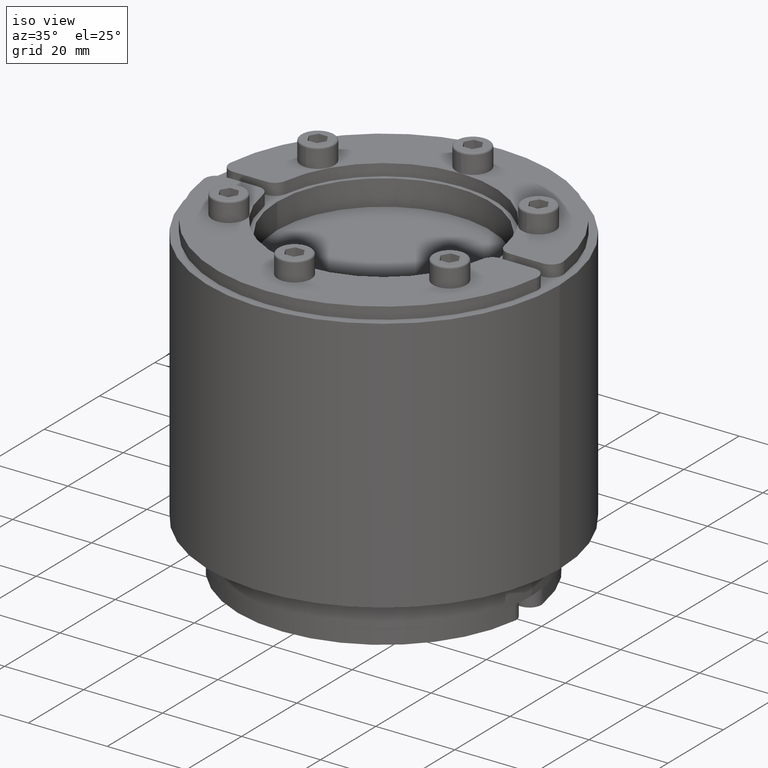
[diagram: clean part render]
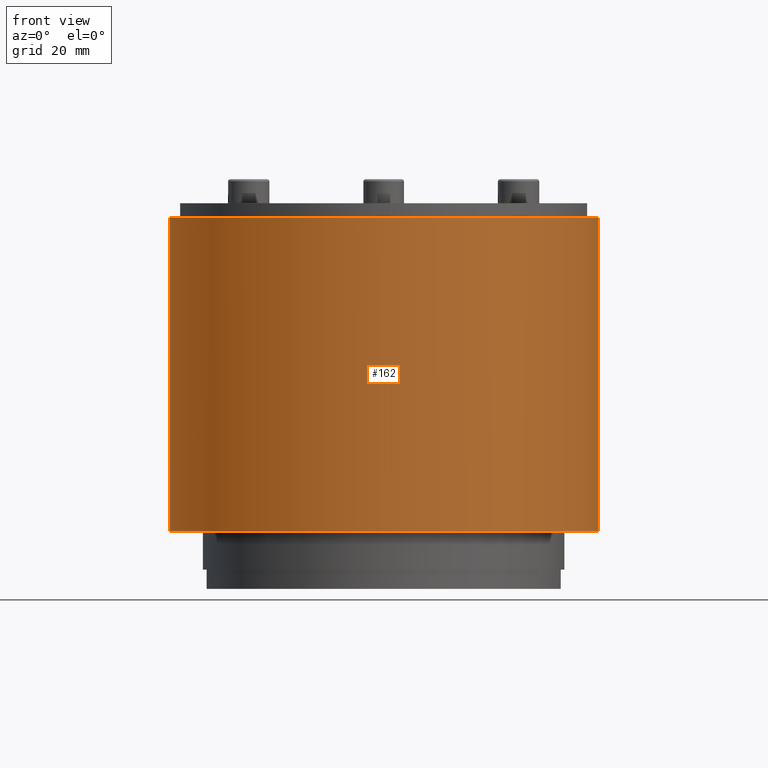
[diagram: tour spotlight — one face highlighted and labeled with its STEP entity id]
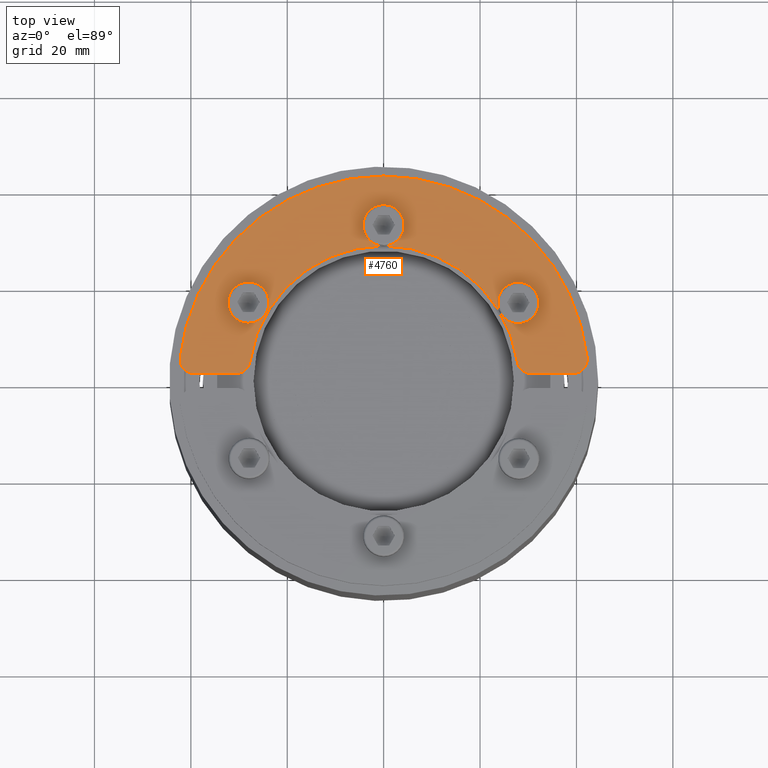
[diagram: tour spotlight — one face highlighted and labeled with its STEP entity id]
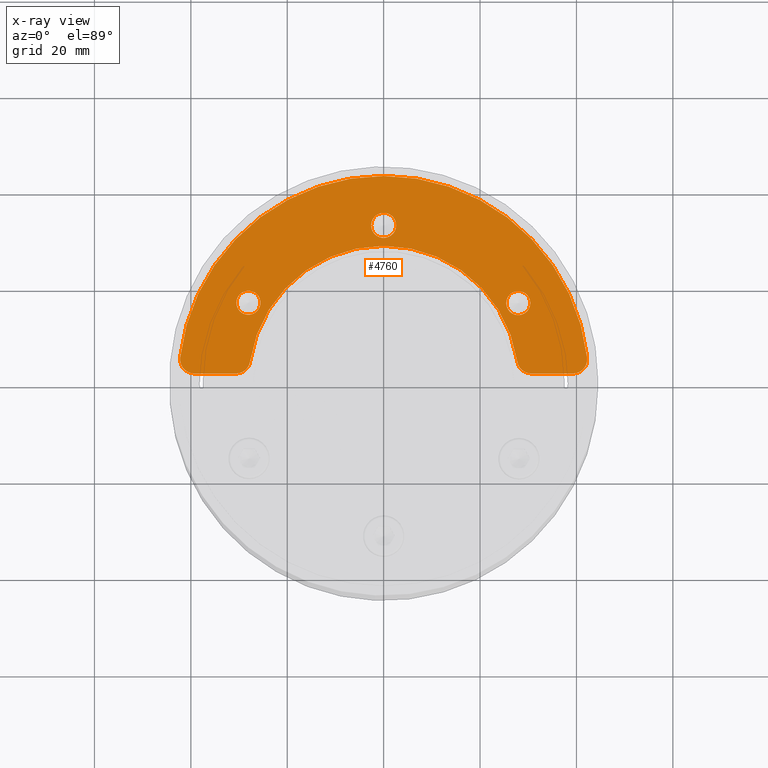
[diagram: x-ray of the same camera — body ghosted, this tour face saturated]
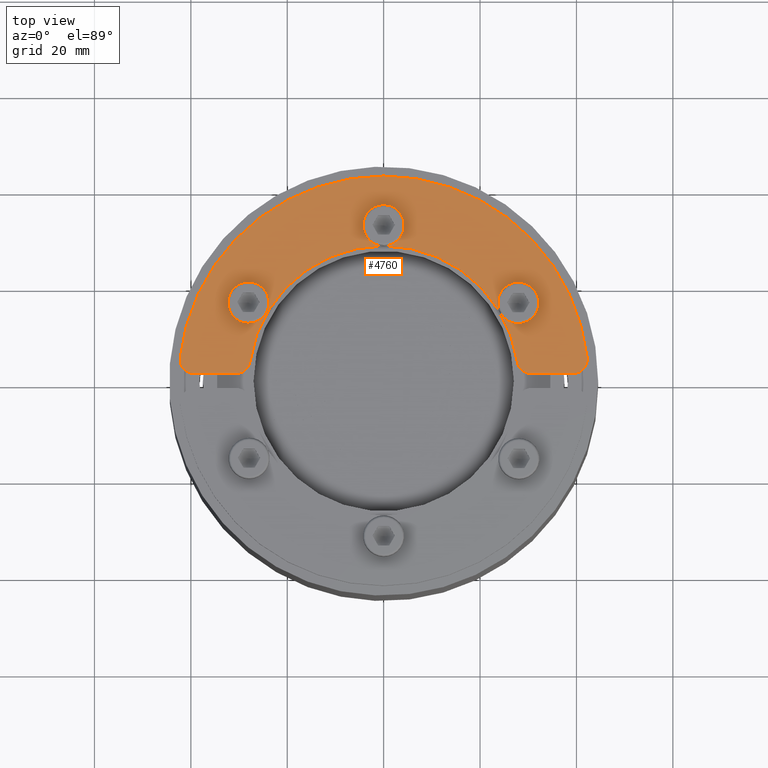
[diagram: tour spotlight — one face highlighted and labeled with its STEP entity id]
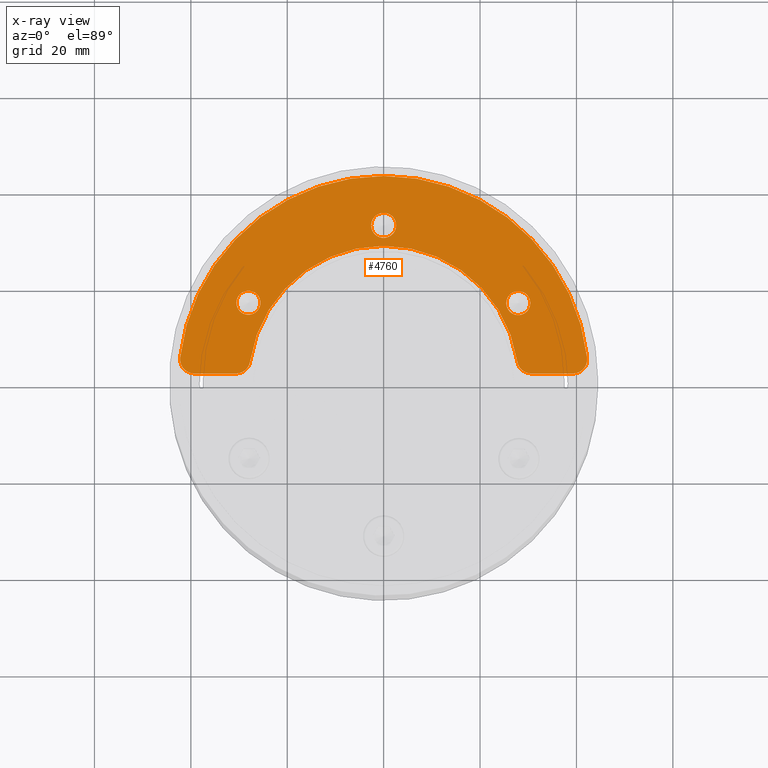
[diagram: x-ray of the same camera — body ghosted, this tour face saturated]
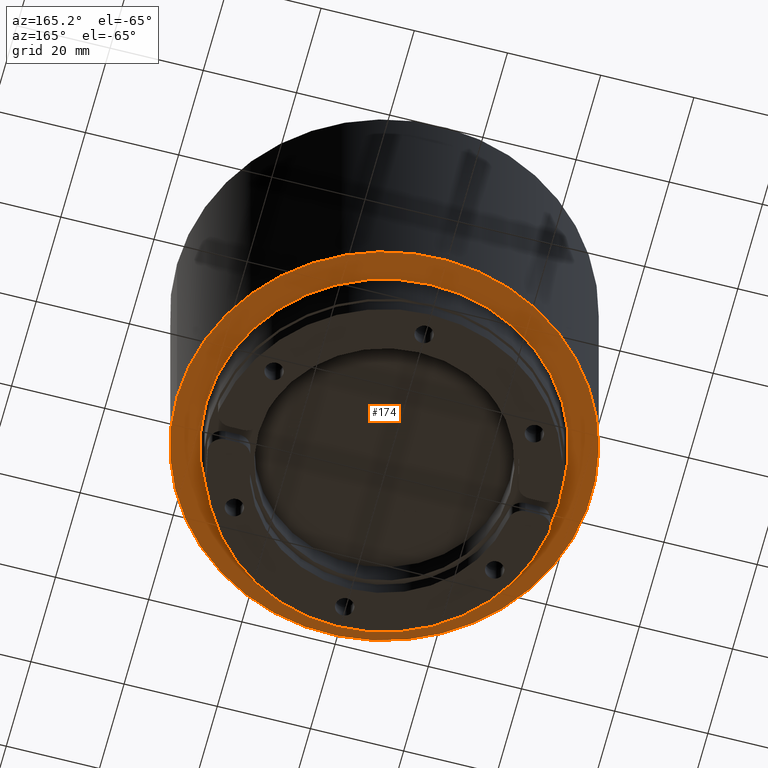
[diagram: tour spotlight — one face highlighted and labeled with its STEP entity id]
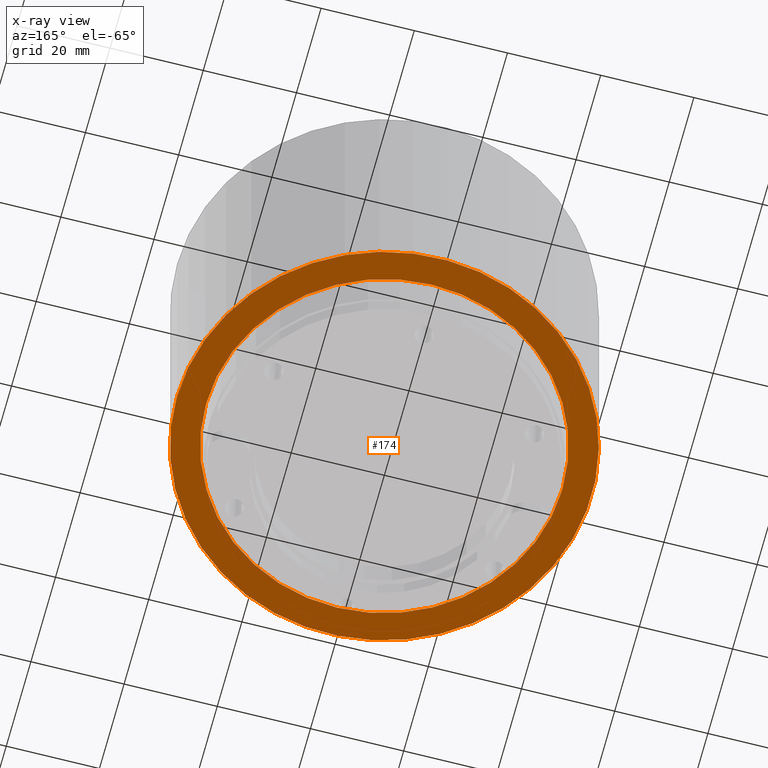
[diagram: x-ray of the same camera — body ghosted, this tour face saturated]
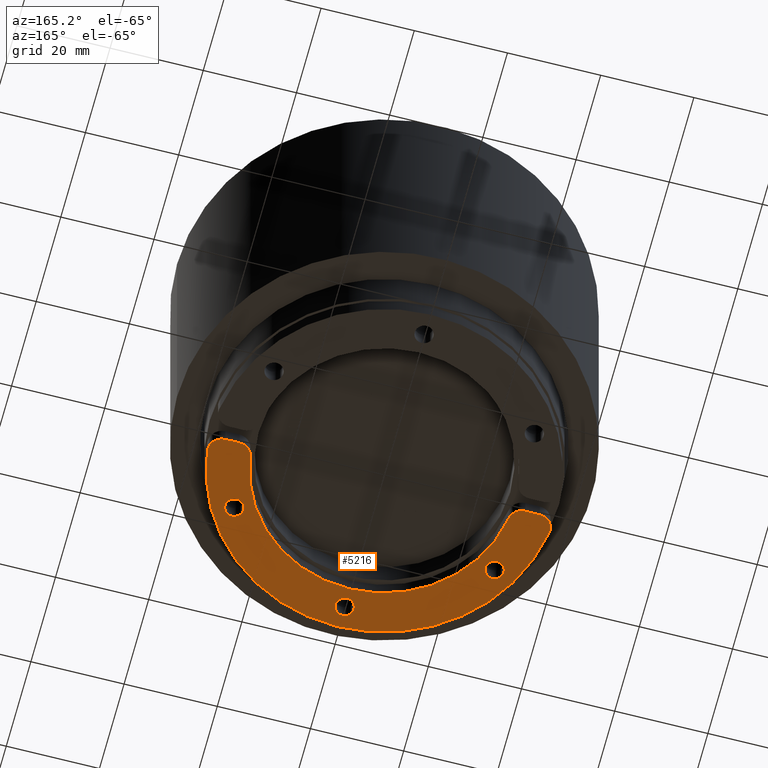
[diagram: tour spotlight — one face highlighted and labeled with its STEP entity id]
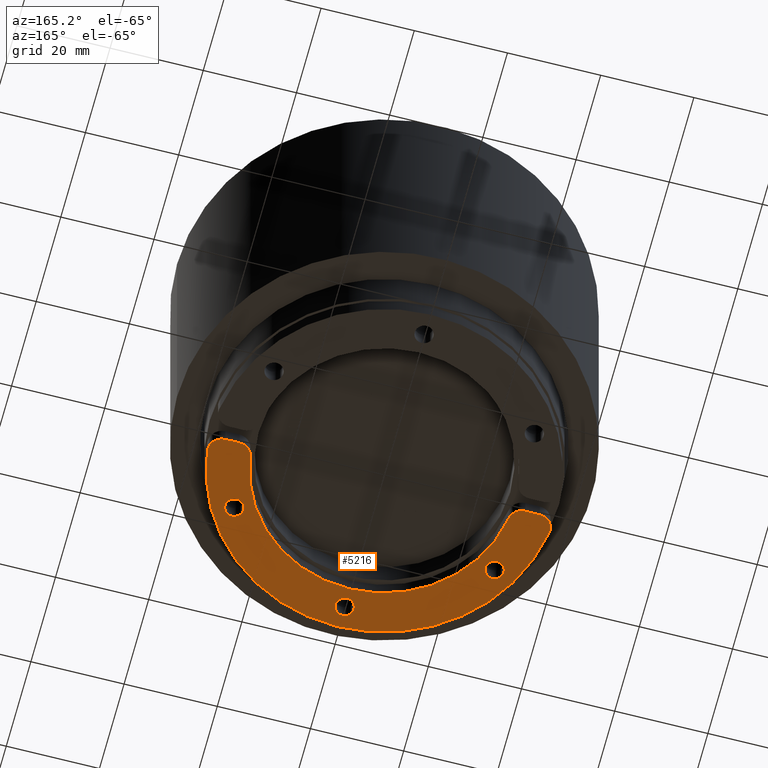
[diagram: tour spotlight — one face highlighted and labeled with its STEP entity id]
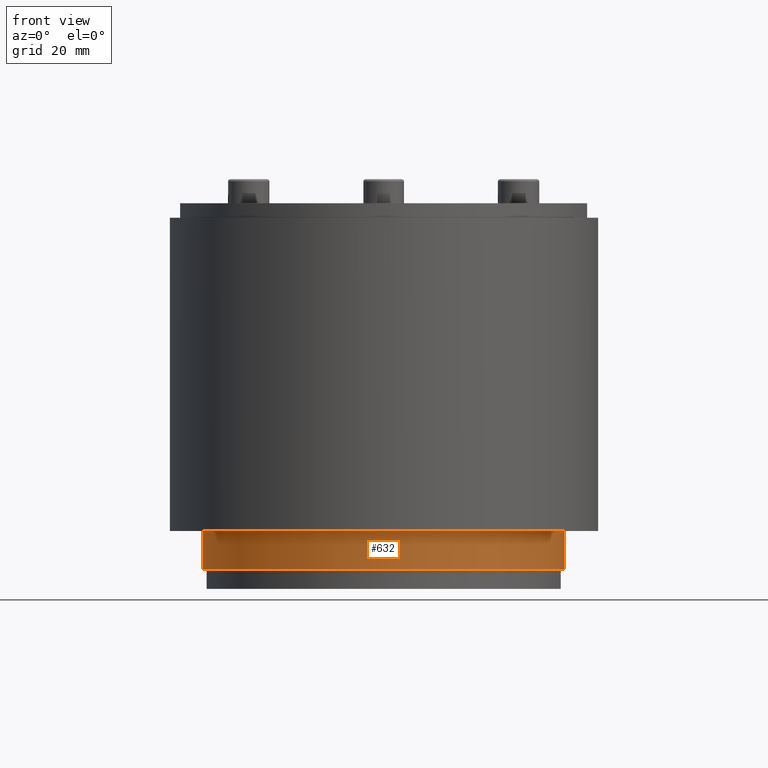
[diagram: tour spotlight — one face highlighted and labeled with its STEP entity id]
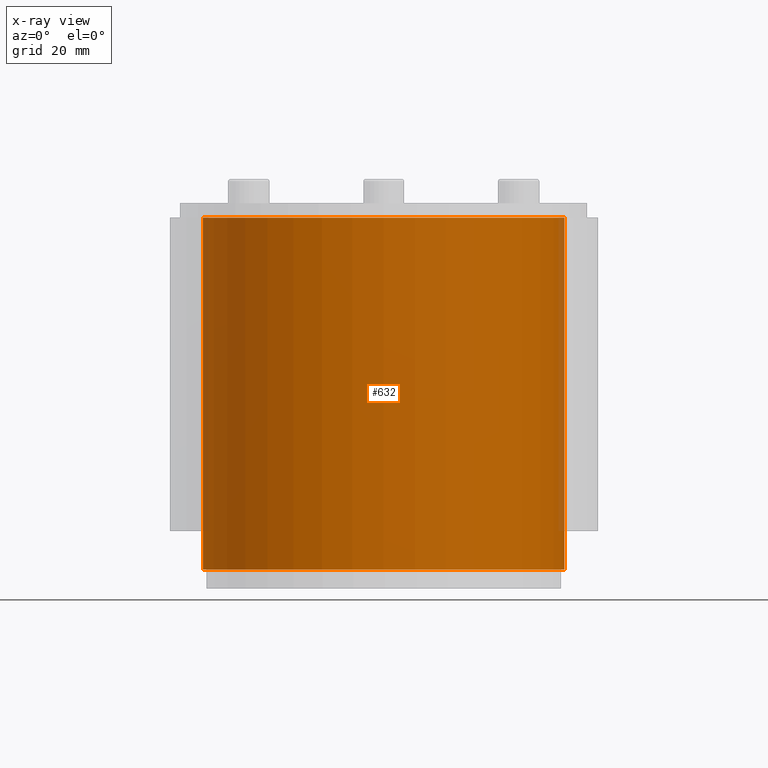
[diagram: x-ray of the same camera — body ghosted, this tour face saturated]
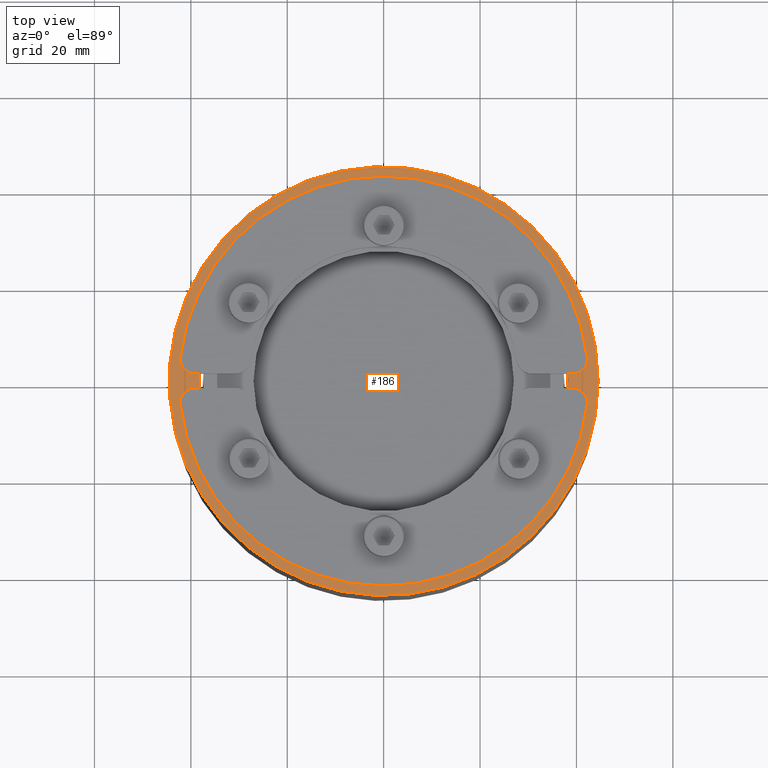
[diagram: tour spotlight — one face highlighted and labeled with its STEP entity id]
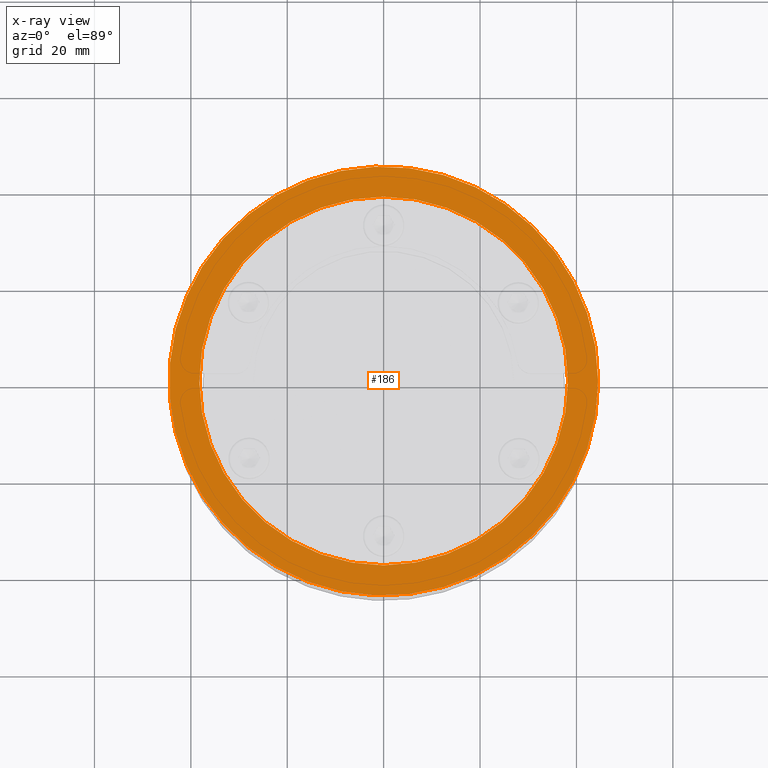
[diagram: x-ray of the same camera — body ghosted, this tour face saturated]
A machine part: a face-by-face anatomy tour. The part has 359 B-rep faces; the first image is the clean iso view, then the 8 largest visible faces are spotlighted one at a time (largest first), each with its STEP entity span.

Face 1 — front view, entity #162. In plain terms, the highlighted cylindrical surface (bore or boss wall) has radius 44.5 mm, axis along (0, 0, -1).
Definition (entity closure, byte-faithful):
#135=CARTESIAN_POINT('',(0.0,0.0,0.0));
#136=DIRECTION('',(0.0,0.0,-1.0));
#137=DIRECTION('',(-1.0,0.0,0.0));
#138=AXIS2_PLACEMENT_3D('',#135,#136,#137);
#139=CYLINDRICAL_SURFACE('',#138,44.5);
#140=CARTESIAN_POINT('',(44.5,5.449678E-015,-65.0));
#141=VERTEX_POINT('',#140);
#142=CARTESIAN_POINT('',(0.0,0.0,-65.0));
#143=DIRECTION('',(0.0,0.0,-1.0));
#144=DIRECTION('',(-1.0,0.0,0.0));
#145=AXIS2_PLACEMENT_3D('',#142,#143,#144);
#146=CIRCLE('',#145,44.5);
#147=EDGE_CURVE('',#141,#141,#146,.T.);
#148=ORIENTED_EDGE('',*,*,#147,.F.);
#149=EDGE_LOOP('',(#148));
#150=FACE_OUTER_BOUND('',#149,.T.);
#151=CARTESIAN_POINT('',(44.5,5.449678E-015,0.0));
#152=VERTEX_POINT('',#151);
#153=CARTESIAN_POINT('',(0.0,0.0,0.0));
#154=DIRECTION('',(0.0,0.0,-1.0));
#155=DIRECTION('',(-1.0,0.0,0.0));
#156=AXIS2_PLACEMENT_3D('',#153,#154,#155);
#157=CIRCLE('',#156,44.5);
#158=EDGE_CURVE('',#152,#152,#157,.T.);
#159=ORIENTED_EDGE('',*,*,#158,.T.);
#160=EDGE_LOOP('',(#159));
#161=FACE_BOUND('',#160,.T.);
#162=ADVANCED_FACE('',(#150,#161),#139,.T.);

Face 2 — top view, entity #4760. An x-ray twin of the same camera follows (body ghosted, this face saturated) — the face is partly hidden behind the body. In plain terms, the highlighted planar face has unit normal (0, 0, -1).
Definition (entity closure, byte-faithful):
#4383=CARTESIAN_POINT('',(47.216568144410417,11.865475256946041,0.0));
#4384=VERTEX_POINT('',#4383);
#4385=CARTESIAN_POINT('',(44.616568144410422,11.865475256946041,0.0));
#4386=DIRECTION('',(0.0,0.0,1.0));
#4387=DIRECTION('',(-1.0,0.0,0.0));
#4388=AXIS2_PLACEMENT_3D('',#4385,#4386,#4387);
#4389=CIRCLE('',#4388,2.6);
#4390=EDGE_CURVE('',#4384,#4384,#4389,.T.);
#4411=CARTESIAN_POINT('',(75.045887416458825,27.990475256945988,0.0));
#4412=VERTEX_POINT('',#4411);
#4413=CARTESIAN_POINT('',(72.545887416458825,27.990475256945988,0.0));
#4414=DIRECTION('',(0.0,0.0,1.0));
#4415=DIRECTION('',(-1.0,0.0,0.0));
#4416=AXIS2_PLACEMENT_3D('',#4413,#4414,#4415);
#4417=CIRCLE('',#4416,2.5);
#4418=EDGE_CURVE('',#4412,#4412,#4417,.T.);
#4439=CARTESIAN_POINT('',(19.057345061794834,27.915475256945999,0.0));
#4440=VERTEX_POINT('',#4439);
#4441=CARTESIAN_POINT('',(16.557345061794834,27.915475256945999,0.0));
#4442=DIRECTION('',(0.0,0.0,1.0));
#4443=DIRECTION('',(-1.0,0.0,0.0));
#4444=AXIS2_PLACEMENT_3D('',#4441,#4442,#4443);
#4445=CIRCLE('',#4444,2.5);
#4446=EDGE_CURVE('',#4440,#4440,#4445,.T.);
#4456=CARTESIAN_POINT('',(83.859401885107744,42.615475256945984,0.0));
#4457=VERTEX_POINT('',#4456);
#4458=CARTESIAN_POINT('',(86.83987027047705,39.27370310504638,0.0));
#4459=VERTEX_POINT('',#4458);
#4460=CARTESIAN_POINT('',(83.859401885107644,39.615475256946013,0.0));
#4461=DIRECTION('',(0.0,0.0,-1.0));
#4462=DIRECTION('',(-0.993489461789768,0.113924050633207,0.0));
#4463=AXIS2_PLACEMENT_3D('',#4460,#4461,#4462);
#4464=CIRCLE('',#4463,3.000000000000088);
#4465=EDGE_CURVE('',#4457,#4459,#4464,.T.);
#4498=CARTESIAN_POINT('',(2.393266018344093,39.273703105046394,0.0));
#4499=VERTEX_POINT('',#4498);
#4500=CARTESIAN_POINT('',(44.616568144410564,44.115475256946013,0.0));
#4501=DIRECTION('',(0.0,0.0,-1.0));
#4502=DIRECTION('',(0.993489461789799,0.113924050632932,0.0));
#4503=AXIS2_PLACEMENT_3D('',#4500,#4501,#4502);
#4504=CIRCLE('',#4503,42.5);
#4505=EDGE_CURVE('',#4459,#4499,#4504,.T.);
#4531=CARTESIAN_POINT('',(5.373734403713443,42.61547525694602,0.0));
#4532=VERTEX_POINT('',#4531);
#4533=CARTESIAN_POINT('',(5.373734403713443,39.615475256946013,0.0));
#4534=DIRECTION('',(0.0,0.0,-1.0));
#4535=DIRECTION('',(0.0,-1.0,0.0));
#4536=AXIS2_PLACEMENT_3D('',#4533,#4534,#4535);
#4537=CIRCLE('',#4536,3.000000000000088);
#4538=EDGE_CURVE('',#4499,#4532,#4537,.T.);
#4564=CARTESIAN_POINT('',(13.94491999828054,42.61547525694602,0.0));
#4565=VERTEX_POINT('',#4564);
#4566=CARTESIAN_POINT('',(5.373734403713443,42.61547525694602,0.0));
#4567=DIRECTION('',(1.0,0.0,0.0));
#4568=VECTOR('',#4567,8.571185594567098);
#4569=LINE('',#4566,#4568);
#4570=EDGE_CURVE('',#4532,#4565,#4569,.T.);
#4595=CARTESIAN_POINT('',(16.913144012421981,40.050959127914247,0.0));
#4596=VERTEX_POINT('',#4595);
#4597=CARTESIAN_POINT('',(13.94491999828054,39.615475256946013,0.0));
#4598=DIRECTION('',(0.0,0.0,-1.0));
#4599=DIRECTION('',(-0.989408004713847,-0.145161290322748,0.0));
#4600=AXIS2_PLACEMENT_3D('',#4597,#4598,#4599);
#4601=CIRCLE('',#4600,3.000000000000087);
#4602=EDGE_CURVE('',#4565,#4596,#4601,.T.);
#4628=CARTESIAN_POINT('',(72.319992276398921,40.050959127913714,0.0));
#4629=VERTEX_POINT('',#4628);
#4630=CARTESIAN_POINT('',(44.616568144410451,44.115475256945956,0.0));
#4631=DIRECTION('',(0.0,0.0,1.0));
#4632=DIRECTION('',(-0.989408004713874,-0.145161290322561,0.0));
#4633=AXIS2_PLACEMENT_3D('',#4630,#4631,#4632);
#4634=CIRCLE('',#4633,28.0);
#4635=EDGE_CURVE('',#4596,#4629,#4634,.T.);
#4661=CARTESIAN_POINT('',(75.288216290540632,42.615475256945984,0.0));
#4662=VERTEX_POINT('',#4661);
#4663=CARTESIAN_POINT('',(75.288216290540632,39.615475256946013,0.0));
#4664=DIRECTION('',(0.0,0.0,-1.0));
#4665=DIRECTION('',(0.0,-1.0,0.0));
#4666=AXIS2_PLACEMENT_3D('',#4663,#4664,#4665);
#4667=CIRCLE('',#4666,3.000000000000088);
#4668=EDGE_CURVE('',#4629,#4662,#4667,.T.);
#4694=CARTESIAN_POINT('',(75.288216290540632,42.615475256945984,0.0));
#4695=DIRECTION('',(1.0,0.0,0.0));
#4696=VECTOR('',#4695,8.571185594567112);
#4697=LINE('',#4694,#4696);
#4698=EDGE_CURVE('',#4662,#4457,#4697,.T.);
#4736=CARTESIAN_POINT('',(44.616568144410508,22.809222355550425,0.0));
#4737=DIRECTION('',(0.0,0.0,1.0));
#4738=DIRECTION('',(1.0,0.0,0.0));
#4739=AXIS2_PLACEMENT_3D('',#4736,#4737,#4738);
#4740=PLANE('',#4739);
#4741=ORIENTED_EDGE('',*,*,#4698,.T.);
#4742=ORIENTED_EDGE('',*,*,#4465,.T.);
#4743=ORIENTED_EDGE('',*,*,#4505,.T.);
#4744=ORIENTED_EDGE('',*,*,#4538,.T.);
#4745=ORIENTED_EDGE('',*,*,#4570,.T.);
#4746=ORIENTED_EDGE('',*,*,#4602,.T.);
#4747=ORIENTED_EDGE('',*,*,#4635,.T.);
#4748=ORIENTED_EDGE('',*,*,#4668,.T.);
#4749=EDGE_LOOP('',(#4741,#4742,#4743,#4744,#4745,#4746,#4747,#4748));
#4750=FACE_OUTER_BOUND('',#4749,.T.);
#4751=ORIENTED_EDGE('',*,*,#4390,.T.);
#4752=EDGE_LOOP('',(#4751));
#4753=FACE_BOUND('',#4752,.T.);
#4754=ORIENTED_EDGE('',*,*,#4418,.T.);
#4755=EDGE_LOOP('',(#4754));
#4756=FACE_BOUND('',#4755,.T.);
#4757=ORIENTED_EDGE('',*,*,#4446,.T.);
#4758=EDGE_LOOP('',(#4757));
#4759=FACE_BOUND('',#4758,.T.);
#4760=ADVANCED_FACE('',(#4750,#4753,#4756,#4759),#4740,.F.);

Face 3 — top view, entity #4760. An x-ray twin of the same camera follows (body ghosted, this face saturated) — the face is partly hidden behind the body. In plain terms, the highlighted planar face has unit normal (-0, 0, -1).
Definition (entity closure, byte-faithful):
#4383=CARTESIAN_POINT('',(47.216568144410417,11.865475256946041,0.0));
#4384=VERTEX_POINT('',#4383);
#4385=CARTESIAN_POINT('',(44.616568144410422,11.865475256946041,0.0));
#4386=DIRECTION('',(0.0,0.0,1.0));
#4387=DIRECTION('',(-1.0,0.0,0.0));
#4388=AXIS2_PLACEMENT_3D('',#4385,#4386,#4387);
#4389=CIRCLE('',#4388,2.6);
#4390=EDGE_CURVE('',#4384,#4384,#4389,.T.);
#4411=CARTESIAN_POINT('',(75.045887416458825,27.990475256945988,0.0));
#4412=VERTEX_POINT('',#4411);
#4413=CARTESIAN_POINT('',(72.545887416458825,27.990475256945988,0.0));
#4414=DIRECTION('',(0.0,0.0,1.0));
#4415=DIRECTION('',(-1.0,0.0,0.0));
#4416=AXIS2_PLACEMENT_3D('',#4413,#4414,#4415);
#4417=CIRCLE('',#4416,2.5);
#4418=EDGE_CURVE('',#4412,#4412,#4417,.T.);
#4439=CARTESIAN_POINT('',(19.057345061794834,27.915475256945999,0.0));
#4440=VERTEX_POINT('',#4439);
#4441=CARTESIAN_POINT('',(16.557345061794834,27.915475256945999,0.0));
#4442=DIRECTION('',(0.0,0.0,1.0));
#4443=DIRECTION('',(-1.0,0.0,0.0));
#4444=AXIS2_PLACEMENT_3D('',#4441,#4442,#4443);
#4445=CIRCLE('',#4444,2.5);
#4446=EDGE_CURVE('',#4440,#4440,#4445,.T.);
#4456=CARTESIAN_POINT('',(83.859401885107744,42.615475256945984,0.0));
#4457=VERTEX_POINT('',#4456);
#4458=CARTESIAN_POINT('',(86.83987027047705,39.27370310504638,0.0));
#4459=VERTEX_POINT('',#4458);
#4460=CARTESIAN_POINT('',(83.859401885107644,39.615475256946013,0.0));
#4461=DIRECTION('',(0.0,0.0,-1.0));
#4462=DIRECTION('',(-0.993489461789768,0.113924050633207,0.0));
#4463=AXIS2_PLACEMENT_3D('',#4460,#4461,#4462);
#4464=CIRCLE('',#4463,3.000000000000088);
#4465=EDGE_CURVE('',#4457,#4459,#4464,.T.);
#4498=CARTESIAN_POINT('',(2.393266018344093,39.273703105046394,0.0));
#4499=VERTEX_POINT('',#4498);
#4500=CARTESIAN_POINT('',(44.616568144410564,44.115475256946013,0.0));
#4501=DIRECTION('',(0.0,0.0,-1.0));
#4502=DIRECTION('',(0.993489461789799,0.113924050632932,0.0));
#4503=AXIS2_PLACEMENT_3D('',#4500,#4501,#4502);
#4504=CIRCLE('',#4503,42.5);
#4505=EDGE_CURVE('',#4459,#4499,#4504,.T.);
#4531=CARTESIAN_POINT('',(5.373734403713443,42.61547525694602,0.0));
#4532=VERTEX_POINT('',#4531);
#4533=CARTESIAN_POINT('',(5.373734403713443,39.615475256946013,0.0));
#4534=DIRECTION('',(0.0,0.0,-1.0));
#4535=DIRECTION('',(0.0,-1.0,0.0));
#4536=AXIS2_PLACEMENT_3D('',#4533,#4534,#4535);
#4537=CIRCLE('',#4536,3.000000000000088);
#4538=EDGE_CURVE('',#4499,#4532,#4537,.T.);
#4564=CARTESIAN_POINT('',(13.94491999828054,42.61547525694602,0.0));
#4565=VERTEX_POINT('',#4564);
#4566=CARTESIAN_POINT('',(5.373734403713443,42.61547525694602,0.0));
#4567=DIRECTION('',(1.0,0.0,0.0));
#4568=VECTOR('',#4567,8.571185594567098);
#4569=LINE('',#4566,#4568);
#4570=EDGE_CURVE('',#4532,#4565,#4569,.T.);
#4595=CARTESIAN_POINT('',(16.913144012421981,40.050959127914247,0.0));
#4596=VERTEX_POINT('',#4595);
#4597=CARTESIAN_POINT('',(13.94491999828054,39.615475256946013,0.0));
#4598=DIRECTION('',(0.0,0.0,-1.0));
#4599=DIRECTION('',(-0.989408004713847,-0.145161290322748,0.0));
#4600=AXIS2_PLACEMENT_3D('',#4597,#4598,#4599);
#4601=CIRCLE('',#4600,3.000000000000087);
#4602=EDGE_CURVE('',#4565,#4596,#4601,.T.);
#4628=CARTESIAN_POINT('',(72.319992276398921,40.050959127913714,0.0));
#4629=VERTEX_POINT('',#4628);
#4630=CARTESIAN_POINT('',(44.616568144410451,44.115475256945956,0.0));
#4631=DIRECTION('',(0.0,0.0,1.0));
#4632=DIRECTION('',(-0.989408004713874,-0.145161290322561,0.0));
#4633=AXIS2_PLACEMENT_3D('',#4630,#4631,#4632);
#4634=CIRCLE('',#4633,28.0);
#4635=EDGE_CURVE('',#4596,#4629,#4634,.T.);
#4661=CARTESIAN_POINT('',(75.288216290540632,42.615475256945984,0.0));
#4662=VERTEX_POINT('',#4661);
#4663=CARTESIAN_POINT('',(75.288216290540632,39.615475256946013,0.0));
#4664=DIRECTION('',(0.0,0.0,-1.0));
#4665=DIRECTION('',(0.0,-1.0,0.0));
#4666=AXIS2_PLACEMENT_3D('',#4663,#4664,#4665);
#4667=CIRCLE('',#4666,3.000000000000088);
#4668=EDGE_CURVE('',#4629,#4662,#4667,.T.);
#4694=CARTESIAN_POINT('',(75.288216290540632,42.615475256945984,0.0));
#4695=DIRECTION('',(1.0,0.0,0.0));
#4696=VECTOR('',#4695,8.571185594567112);
#4697=LINE('',#4694,#4696);
#4698=EDGE_CURVE('',#4662,#4457,#4697,.T.);
#4736=CARTESIAN_POINT('',(44.616568144410508,22.809222355550425,0.0));
#4737=DIRECTION('',(0.0,0.0,1.0));
#4738=DIRECTION('',(1.0,0.0,0.0));
#4739=AXIS2_PLACEMENT_3D('',#4736,#4737,#4738);
#4740=PLANE('',#4739);
#4741=ORIENTED_EDGE('',*,*,#4698,.T.);
#4742=ORIENTED_EDGE('',*,*,#4465,.T.);
#4743=ORIENTED_EDGE('',*,*,#4505,.T.);
#4744=ORIENTED_EDGE('',*,*,#4538,.T.);
#4745=ORIENTED_EDGE('',*,*,#4570,.T.);
#4746=ORIENTED_EDGE('',*,*,#4602,.T.);
#4747=ORIENTED_EDGE('',*,*,#4635,.T.);
#4748=ORIENTED_EDGE('',*,*,#4668,.T.);
#4749=EDGE_LOOP('',(#4741,#4742,#4743,#4744,#4745,#4746,#4747,#4748));
#4750=FACE_OUTER_BOUND('',#4749,.T.);
#4751=ORIENTED_EDGE('',*,*,#4390,.T.);
#4752=EDGE_LOOP('',(#4751));
#4753=FACE_BOUND('',#4752,.T.);
#4754=ORIENTED_EDGE('',*,*,#4418,.T.);
#4755=EDGE_LOOP('',(#4754));
#4756=FACE_BOUND('',#4755,.T.);
#4757=ORIENTED_EDGE('',*,*,#4446,.T.);
#4758=EDGE_LOOP('',(#4757));
#4759=FACE_BOUND('',#4758,.T.);
#4760=ADVANCED_FACE('',(#4750,#4753,#4756,#4759),#4740,.F.);

Face 4 — auxiliary view, entity #174. An x-ray twin of the same camera follows (body ghosted, this face saturated) — the face is partly hidden behind the body. In plain terms, the highlighted planar face has unit normal (0, 0, 1).
Definition (entity closure, byte-faithful):
#112=CARTESIAN_POINT('',(-38.25,-4.684274E-015,-65.0));
#113=VERTEX_POINT('',#112);
#114=CARTESIAN_POINT('',(0.0,0.0,-65.0));
#115=DIRECTION('',(0.0,0.0,1.0));
#116=DIRECTION('',(1.0,0.0,0.0));
#117=AXIS2_PLACEMENT_3D('',#114,#115,#116);
#118=CIRCLE('',#117,38.25);
#119=EDGE_CURVE('',#113,#113,#118,.T.);
#140=CARTESIAN_POINT('',(44.5,5.449678E-015,-65.0));
#141=VERTEX_POINT('',#140);
#142=CARTESIAN_POINT('',(0.0,0.0,-65.0));
#143=DIRECTION('',(0.0,0.0,-1.0));
#144=DIRECTION('',(-1.0,0.0,0.0));
#145=AXIS2_PLACEMENT_3D('',#142,#143,#144);
#146=CIRCLE('',#145,44.5);
#147=EDGE_CURVE('',#141,#141,#146,.T.);
#163=CARTESIAN_POINT('',(-1.784744E-015,6.653022E-016,-65.0));
#164=DIRECTION('',(0.0,0.0,1.0));
#165=DIRECTION('',(1.0,0.0,0.0));
#166=AXIS2_PLACEMENT_3D('',#163,#164,#165);
#167=PLANE('',#166);
#168=ORIENTED_EDGE('',*,*,#147,.T.);
#169=EDGE_LOOP('',(#168));
#170=FACE_OUTER_BOUND('',#169,.T.);
#171=ORIENTED_EDGE('',*,*,#119,.T.);
#172=EDGE_LOOP('',(#171));
#173=FACE_BOUND('',#172,.T.);
#174=ADVANCED_FACE('',(#170,#173),#167,.F.);

Face 5 — auxiliary view, entity #5216. In plain terms, the highlighted planar face has unit normal (-0, 0, -1).
Definition (entity closure, byte-faithful):
#4853=CARTESIAN_POINT('',(14.344494948543359,22.796060328683684,4.0));
#4854=VERTEX_POINT('',#4853);
#4855=CARTESIAN_POINT('',(12.344494948543359,22.796060328683684,4.0));
#4856=DIRECTION('',(0.0,0.0,-1.0));
#4857=DIRECTION('',(-1.0,0.0,0.0));
#4858=AXIS2_PLACEMENT_3D('',#4855,#4856,#4857);
#4859=CIRCLE('',#4858,2.0);
#4860=EDGE_CURVE('',#4854,#4854,#4859,.T.);
#4881=CARTESIAN_POINT('',(42.273814220591547,6.671060328683596,4.0));
#4882=VERTEX_POINT('',#4881);
#4883=CARTESIAN_POINT('',(40.273814220591547,6.671060328683596,4.0));
#4884=DIRECTION('',(0.0,0.0,-1.0));
#4885=DIRECTION('',(-1.0,0.0,0.0));
#4886=AXIS2_PLACEMENT_3D('',#4883,#4884,#4885);
#4887=CIRCLE('',#4886,2.0);
#4888=EDGE_CURVE('',#4882,#4882,#4887,.T.);
#4909=CARTESIAN_POINT('',(70.203133492639751,22.796060328683552,4.0));
#4910=VERTEX_POINT('',#4909);
#4911=CARTESIAN_POINT('',(68.203133492639751,22.796060328683552,4.0));
#4912=DIRECTION('',(0.0,0.0,-1.0));
#4913=DIRECTION('',(-1.0,0.0,0.0));
#4914=AXIS2_PLACEMENT_3D('',#4911,#4912,#4913);
#4915=CIRCLE('',#4914,2.0);
#4916=EDGE_CURVE('',#4910,#4910,#4915,.T.);
#4948=CARTESIAN_POINT('',(9.60216607446165,37.42106032868368,4.0));
#4949=VERTEX_POINT('',#4948);
#4956=CARTESIAN_POINT('',(12.570390088603133,34.856544199651957,4.0));
#4957=VERTEX_POINT('',#4956);
#4958=CARTESIAN_POINT('',(9.60216607446165,34.42106032868378,4.0));
#4959=DIRECTION('',(0.0,0.0,1.0));
#4960=DIRECTION('',(-0.989408004713849,-0.145161290322729,0.0));
#4961=AXIS2_PLACEMENT_3D('',#4958,#4959,#4960);
#4962=CIRCLE('',#4961,3.0);
#4963=EDGE_CURVE('',#4957,#4949,#4962,.T.);
#4989=CARTESIAN_POINT('',(67.977238352580088,34.856544199651943,4.0));
#4990=VERTEX_POINT('',#4989);
#4991=CARTESIAN_POINT('',(40.273814220591603,38.921060328683666,4.0));
#4992=DIRECTION('',(0.0,0.0,-1.0));
#4993=DIRECTION('',(-0.989408004713874,-0.145161290322561,0.0));
#4994=AXIS2_PLACEMENT_3D('',#4991,#4992,#4993);
#4995=CIRCLE('',#4994,28.0);
#4996=EDGE_CURVE('',#4990,#4957,#4995,.T.);
#5022=CARTESIAN_POINT('',(70.9454623667216,37.421060328683666,4.0));
#5023=VERTEX_POINT('',#5022);
#5024=CARTESIAN_POINT('',(70.945462366721713,34.421060328683666,4.0));
#5025=DIRECTION('',(0.0,0.0,1.0));
#5026=DIRECTION('',(0.0,-1.0,0.0));
#5027=AXIS2_PLACEMENT_3D('',#5024,#5025,#5026);
#5028=CIRCLE('',#5027,3.0);
#5029=EDGE_CURVE('',#5023,#4990,#5028,.T.);
#5054=CARTESIAN_POINT('',(74.02629944596255,37.421060328683666,4.0));
#5055=VERTEX_POINT('',#5054);
#5056=CARTESIAN_POINT('',(74.02629944596255,37.421060328683666,4.0));
#5057=DIRECTION('',(-1.0,0.0,0.0));
#5058=VECTOR('',#5057,3.080837079240951);
#5059=LINE('',#5056,#5058);
#5060=EDGE_CURVE('',#5055,#5023,#5059,.T.);
#5086=CARTESIAN_POINT('',(76.868884107341614,33.462043935240352,4.0));
#5087=VERTEX_POINT('',#5086);
#5088=CARTESIAN_POINT('',(74.02629944596255,34.421060328683666,4.0));
#5089=DIRECTION('',(0.0,0.0,1.0));
#5090=DIRECTION('',(-0.947528220459659,0.319672131147761,0.0));
#5091=AXIS2_PLACEMENT_3D('',#5088,#5089,#5090);
#5092=CIRCLE('',#5091,3.0);
#5093=EDGE_CURVE('',#5087,#5055,#5092,.T.);
#5119=CARTESIAN_POINT('',(3.599316066166989,34.024001505154288,4.0));
#5120=VERTEX_POINT('',#5119);
#5121=CARTESIAN_POINT('',(40.273814220591603,38.921060328683666,4.0));
#5122=DIRECTION('',(0.0,0.0,1.0));
#5123=DIRECTION('',(0.991202652822286,0.13235294117647,0.0));
#5124=AXIS2_PLACEMENT_3D('',#5121,#5122,#5123);
#5125=CIRCLE('',#5124,37.0);
#5126=EDGE_CURVE('',#5120,#5087,#5125,.T.);
#5152=CARTESIAN_POINT('',(6.572924024633863,37.42106032868368,4.0));
#5153=VERTEX_POINT('',#5152);
#5154=CARTESIAN_POINT('',(6.572924024633849,34.42106032868368,4.0));
#5155=DIRECTION('',(0.0,0.0,1.0));
#5156=DIRECTION('',(0.0,-1.0,0.0));
#5157=AXIS2_PLACEMENT_3D('',#5154,#5155,#5156);
#5158=CIRCLE('',#5157,3.0);
#5159=EDGE_CURVE('',#5153,#5120,#5158,.T.);
#5182=CARTESIAN_POINT('',(9.60216607446165,37.42106032868368,4.0));
#5183=DIRECTION('',(-1.0,0.0,0.0));
#5184=VECTOR('',#5183,3.029242049827786);
#5185=LINE('',#5182,#5184);
#5186=EDGE_CURVE('',#4949,#5153,#5185,.T.);
#5192=CARTESIAN_POINT('',(40.287811891970911,18.623734456226352,4.0));
#5193=DIRECTION('',(0.0,0.0,1.0));
#5194=DIRECTION('',(1.0,0.0,0.0));
#5195=AXIS2_PLACEMENT_3D('',#5192,#5193,#5194);
#5196=PLANE('',#5195);
#5197=ORIENTED_EDGE('',*,*,#5186,.T.);
#5198=ORIENTED_EDGE('',*,*,#5159,.T.);
#5199=ORIENTED_EDGE('',*,*,#5126,.T.);
#5200=ORIENTED_EDGE('',*,*,#5093,.T.);
#5201=ORIENTED_EDGE('',*,*,#5060,.T.);
#5202=ORIENTED_EDGE('',*,*,#5029,.T.);
#5203=ORIENTED_EDGE('',*,*,#4996,.T.);
#5204=ORIENTED_EDGE('',*,*,#4963,.T.);
#5205=EDGE_LOOP('',(#5197,#5198,#5199,#5200,#5201,#5202,#5203,#5204));
#5206=FACE_OUTER_BOUND('',#5205,.T.);
#5207=ORIENTED_EDGE('',*,*,#4860,.T.);
#5208=EDGE_LOOP('',(#5207));
#5209=FACE_BOUND('',#5208,.T.);
#5210=ORIENTED_EDGE('',*,*,#4888,.T.);
#5211=EDGE_LOOP('',(#5210));
#5212=FACE_BOUND('',#5211,.T.);
#5213=ORIENTED_EDGE('',*,*,#4916,.T.);
#5214=EDGE_LOOP('',(#5213));
#5215=FACE_BOUND('',#5214,.T.);
#5216=ADVANCED_FACE('',(#5206,#5209,#5212,#5215),#5196,.T.);

Face 6 — auxiliary view, entity #5216. In plain terms, the highlighted planar face has unit normal (0, 0, -1).
Definition (entity closure, byte-faithful):
#4853=CARTESIAN_POINT('',(14.344494948543359,22.796060328683684,4.0));
#4854=VERTEX_POINT('',#4853);
#4855=CARTESIAN_POINT('',(12.344494948543359,22.796060328683684,4.0));
#4856=DIRECTION('',(0.0,0.0,-1.0));
#4857=DIRECTION('',(-1.0,0.0,0.0));
#4858=AXIS2_PLACEMENT_3D('',#4855,#4856,#4857);
#4859=CIRCLE('',#4858,2.0);
#4860=EDGE_CURVE('',#4854,#4854,#4859,.T.);
#4881=CARTESIAN_POINT('',(42.273814220591547,6.671060328683596,4.0));
#4882=VERTEX_POINT('',#4881);
#4883=CARTESIAN_POINT('',(40.273814220591547,6.671060328683596,4.0));
#4884=DIRECTION('',(0.0,0.0,-1.0));
#4885=DIRECTION('',(-1.0,0.0,0.0));
#4886=AXIS2_PLACEMENT_3D('',#4883,#4884,#4885);
#4887=CIRCLE('',#4886,2.0);
#4888=EDGE_CURVE('',#4882,#4882,#4887,.T.);
#4909=CARTESIAN_POINT('',(70.203133492639751,22.796060328683552,4.0));
#4910=VERTEX_POINT('',#4909);
#4911=CARTESIAN_POINT('',(68.203133492639751,22.796060328683552,4.0));
#4912=DIRECTION('',(0.0,0.0,-1.0));
#4913=DIRECTION('',(-1.0,0.0,0.0));
#4914=AXIS2_PLACEMENT_3D('',#4911,#4912,#4913);
#4915=CIRCLE('',#4914,2.0);
#4916=EDGE_CURVE('',#4910,#4910,#4915,.T.);
#4948=CARTESIAN_POINT('',(9.60216607446165,37.42106032868368,4.0));
#4949=VERTEX_POINT('',#4948);
#4956=CARTESIAN_POINT('',(12.570390088603133,34.856544199651957,4.0));
#4957=VERTEX_POINT('',#4956);
#4958=CARTESIAN_POINT('',(9.60216607446165,34.42106032868378,4.0));
#4959=DIRECTION('',(0.0,0.0,1.0));
#4960=DIRECTION('',(-0.989408004713849,-0.145161290322729,0.0));
#4961=AXIS2_PLACEMENT_3D('',#4958,#4959,#4960);
#4962=CIRCLE('',#4961,3.0);
#4963=EDGE_CURVE('',#4957,#4949,#4962,.T.);
#4989=CARTESIAN_POINT('',(67.977238352580088,34.856544199651943,4.0));
#4990=VERTEX_POINT('',#4989);
#4991=CARTESIAN_POINT('',(40.273814220591603,38.921060328683666,4.0));
#4992=DIRECTION('',(0.0,0.0,-1.0));
#4993=DIRECTION('',(-0.989408004713874,-0.145161290322561,0.0));
#4994=AXIS2_PLACEMENT_3D('',#4991,#4992,#4993);
#4995=CIRCLE('',#4994,28.0);
#4996=EDGE_CURVE('',#4990,#4957,#4995,.T.);
#5022=CARTESIAN_POINT('',(70.9454623667216,37.421060328683666,4.0));
#5023=VERTEX_POINT('',#5022);
#5024=CARTESIAN_POINT('',(70.945462366721713,34.421060328683666,4.0));
#5025=DIRECTION('',(0.0,0.0,1.0));
#5026=DIRECTION('',(0.0,-1.0,0.0));
#5027=AXIS2_PLACEMENT_3D('',#5024,#5025,#5026);
#5028=CIRCLE('',#5027,3.0);
#5029=EDGE_CURVE('',#5023,#4990,#5028,.T.);
#5054=CARTESIAN_POINT('',(74.02629944596255,37.421060328683666,4.0));
#5055=VERTEX_POINT('',#5054);
#5056=CARTESIAN_POINT('',(74.02629944596255,37.421060328683666,4.0));
#5057=DIRECTION('',(-1.0,0.0,0.0));
#5058=VECTOR('',#5057,3.080837079240951);
#5059=LINE('',#5056,#5058);
#5060=EDGE_CURVE('',#5055,#5023,#5059,.T.);
#5086=CARTESIAN_POINT('',(76.868884107341614,33.462043935240352,4.0));
#5087=VERTEX_POINT('',#5086);
#5088=CARTESIAN_POINT('',(74.02629944596255,34.421060328683666,4.0));
#5089=DIRECTION('',(0.0,0.0,1.0));
#5090=DIRECTION('',(-0.947528220459659,0.319672131147761,0.0));
#5091=AXIS2_PLACEMENT_3D('',#5088,#5089,#5090);
#5092=CIRCLE('',#5091,3.0);
#5093=EDGE_CURVE('',#5087,#5055,#5092,.T.);
#5119=CARTESIAN_POINT('',(3.599316066166989,34.024001505154288,4.0));
#5120=VERTEX_POINT('',#5119);
#5121=CARTESIAN_POINT('',(40.273814220591603,38.921060328683666,4.0));
#5122=DIRECTION('',(0.0,0.0,1.0));
#5123=DIRECTION('',(0.991202652822286,0.13235294117647,0.0));
#5124=AXIS2_PLACEMENT_3D('',#5121,#5122,#5123);
#5125=CIRCLE('',#5124,37.0);
#5126=EDGE_CURVE('',#5120,#5087,#5125,.T.);
#5152=CARTESIAN_POINT('',(6.572924024633863,37.42106032868368,4.0));
#5153=VERTEX_POINT('',#5152);
#5154=CARTESIAN_POINT('',(6.572924024633849,34.42106032868368,4.0));
#5155=DIRECTION('',(0.0,0.0,1.0));
#5156=DIRECTION('',(0.0,-1.0,0.0));
#5157=AXIS2_PLACEMENT_3D('',#5154,#5155,#5156);
#5158=CIRCLE('',#5157,3.0);
#5159=EDGE_CURVE('',#5153,#5120,#5158,.T.);
#5182=CARTESIAN_POINT('',(9.60216607446165,37.42106032868368,4.0));
#5183=DIRECTION('',(-1.0,0.0,0.0));
#5184=VECTOR('',#5183,3.029242049827786);
#5185=LINE('',#5182,#5184);
#5186=EDGE_CURVE('',#4949,#5153,#5185,.T.);
#5192=CARTESIAN_POINT('',(40.287811891970911,18.623734456226352,4.0));
#5193=DIRECTION('',(0.0,0.0,1.0));
#5194=DIRECTION('',(1.0,0.0,0.0));
#5195=AXIS2_PLACEMENT_3D('',#5192,#5193,#5194);
#5196=PLANE('',#5195);
#5197=ORIENTED_EDGE('',*,*,#5186,.T.);
#5198=ORIENTED_EDGE('',*,*,#5159,.T.);
#5199=ORIENTED_EDGE('',*,*,#5126,.T.);
#5200=ORIENTED_EDGE('',*,*,#5093,.T.);
#5201=ORIENTED_EDGE('',*,*,#5060,.T.);
#5202=ORIENTED_EDGE('',*,*,#5029,.T.);
#5203=ORIENTED_EDGE('',*,*,#4996,.T.);
#5204=ORIENTED_EDGE('',*,*,#4963,.T.);
#5205=EDGE_LOOP('',(#5197,#5198,#5199,#5200,#5201,#5202,#5203,#5204));
#5206=FACE_OUTER_BOUND('',#5205,.T.);
#5207=ORIENTED_EDGE('',*,*,#4860,.T.);
#5208=EDGE_LOOP('',(#5207));
#5209=FACE_BOUND('',#5208,.T.);
#5210=ORIENTED_EDGE('',*,*,#4888,.T.);
#5211=EDGE_LOOP('',(#5210));
#5212=FACE_BOUND('',#5211,.T.);
#5213=ORIENTED_EDGE('',*,*,#4916,.T.);
#5214=EDGE_LOOP('',(#5213));
#5215=FACE_BOUND('',#5214,.T.);
#5216=ADVANCED_FACE('',(#5206,#5209,#5212,#5215),#5196,.T.);

Face 7 — front view, entity #632. An x-ray twin of the same camera follows (body ghosted, this face saturated) — the face is partly hidden behind the body. In plain terms, the highlighted cylindrical surface (partial cylindrical patch) has radius 37.5 mm, axis along (0, 0, -1).
Definition (entity closure, byte-faithful):
#567=CARTESIAN_POINT('',(77.487986407757091,40.528022387646388,0.0));
#568=VERTEX_POINT('',#567);
#583=CARTESIAN_POINT('',(77.487986407757091,40.528022387646388,73.0));
#584=VERTEX_POINT('',#583);
#591=CARTESIAN_POINT('',(77.487986407757091,40.528022387646388,0.0));
#592=DIRECTION('',(0.0,0.0,1.0));
#593=VECTOR('',#592,73.0);
#594=LINE('',#591,#593);
#595=EDGE_CURVE('',#568,#584,#594,.T.);
#600=CARTESIAN_POINT('',(39.98798640775712,40.528022387646416,0.0));
#601=DIRECTION('',(0.0,0.0,1.0));
#602=DIRECTION('',(1.0,0.0,0.0));
#603=AXIS2_PLACEMENT_3D('',#600,#601,#602);
#604=CYLINDRICAL_SURFACE('',#603,37.499999999999993);
#605=CARTESIAN_POINT('',(2.48798640775712,40.528022387646416,0.0));
#606=VERTEX_POINT('',#605);
#607=CARTESIAN_POINT('',(39.98798640775712,40.528022387646416,0.0));
#608=DIRECTION('',(0.0,0.0,-1.0));
#609=DIRECTION('',(1.0,0.0,0.0));
#610=AXIS2_PLACEMENT_3D('',#607,#608,#609);
#611=CIRCLE('',#610,37.499999999999993);
#612=EDGE_CURVE('',#568,#606,#611,.T.);
#613=ORIENTED_EDGE('',*,*,#612,.F.);
#614=ORIENTED_EDGE('',*,*,#595,.T.);
#615=CARTESIAN_POINT('',(2.487986407757119,40.528022387646416,73.0));
#616=VERTEX_POINT('',#615);
#617=CARTESIAN_POINT('',(39.98798640775712,40.528022387646416,73.0));
#618=DIRECTION('',(0.0,0.0,1.0));
#619=DIRECTION('',(1.0,0.0,0.0));
#620=AXIS2_PLACEMENT_3D('',#617,#618,#619);
#621=CIRCLE('',#620,37.499999999999993);
#622=EDGE_CURVE('',#616,#584,#621,.T.);
#623=ORIENTED_EDGE('',*,*,#622,.F.);
#624=CARTESIAN_POINT('',(2.48798640775712,40.528022387646416,0.0));
#625=DIRECTION('',(0.0,0.0,1.0));
#626=VECTOR('',#625,73.0);
#627=LINE('',#624,#626);
#628=EDGE_CURVE('',#606,#616,#627,.T.);
#629=ORIENTED_EDGE('',*,*,#628,.F.);
#630=EDGE_LOOP('',(#613,#614,#623,#629));
#631=FACE_OUTER_BOUND('',#630,.T.);
#632=ADVANCED_FACE('',(#631),#604,.T.);

Face 8 — top view, entity #186. An x-ray twin of the same camera follows (body ghosted, this face saturated) — the face is partly hidden behind the body. In plain terms, the highlighted planar face has unit normal (0, 0, 1).
Definition (entity closure, byte-faithful):
#123=CARTESIAN_POINT('',(38.25,0.0,0.0));
#124=VERTEX_POINT('',#123);
#125=CARTESIAN_POINT('',(0.0,0.0,0.0));
#126=DIRECTION('',(0.0,0.0,-1.0));
#127=DIRECTION('',(1.0,0.0,0.0));
#128=AXIS2_PLACEMENT_3D('',#125,#126,#127);
#129=CIRCLE('',#128,38.25);
#130=EDGE_CURVE('',#124,#124,#129,.T.);
#151=CARTESIAN_POINT('',(44.5,5.449678E-015,0.0));
#152=VERTEX_POINT('',#151);
#153=CARTESIAN_POINT('',(0.0,0.0,0.0));
#154=DIRECTION('',(0.0,0.0,-1.0));
#155=DIRECTION('',(-1.0,0.0,0.0));
#156=AXIS2_PLACEMENT_3D('',#153,#154,#155);
#157=CIRCLE('',#156,44.5);
#158=EDGE_CURVE('',#152,#152,#157,.T.);
#175=CARTESIAN_POINT('',(-1.784744E-015,6.653022E-016,0.0));
#176=DIRECTION('',(0.0,0.0,1.0));
#177=DIRECTION('',(1.0,0.0,0.0));
#178=AXIS2_PLACEMENT_3D('',#175,#176,#177);
#179=PLANE('',#178);
#180=ORIENTED_EDGE('',*,*,#158,.F.);
#181=EDGE_LOOP('',(#180));
#182=FACE_OUTER_BOUND('',#181,.T.);
#183=ORIENTED_EDGE('',*,*,#130,.T.);
#184=EDGE_LOOP('',(#183));
#185=FACE_BOUND('',#184,.T.);
#186=ADVANCED_FACE('',(#182,#185),#179,.T.);